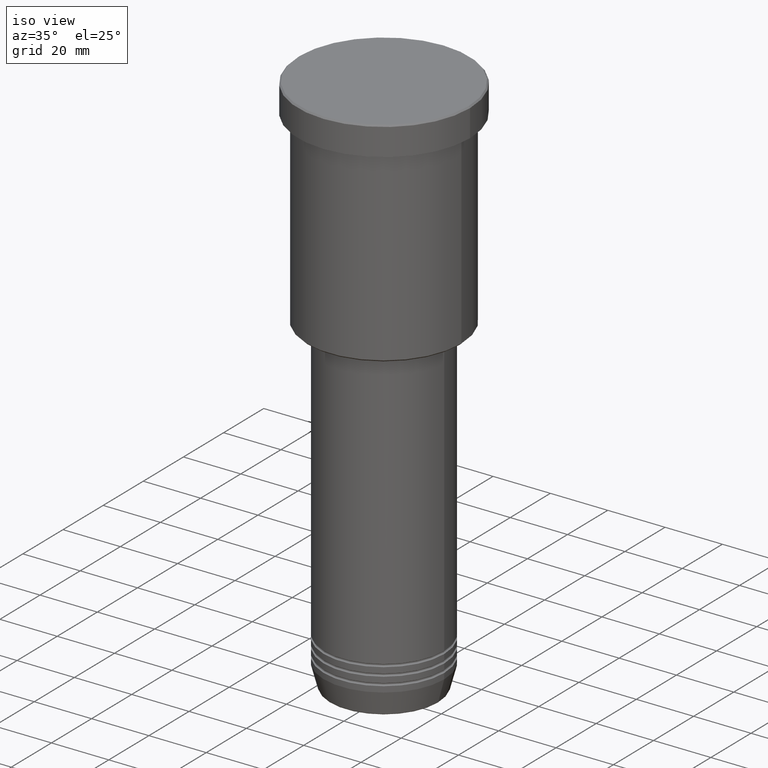
[diagram: clean part render]
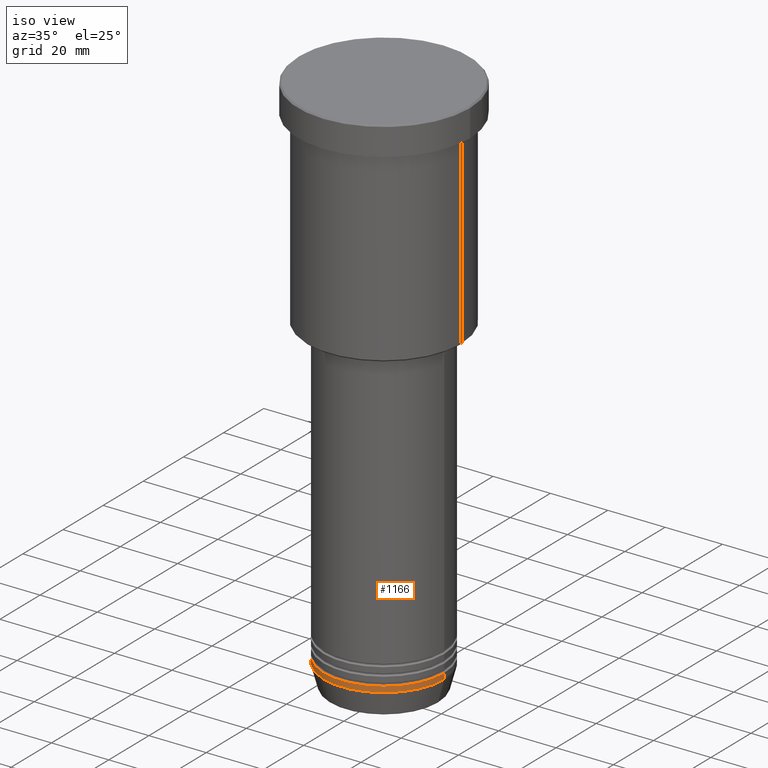
[diagram: same view with one face highlighted and labeled with its STEP entity id]
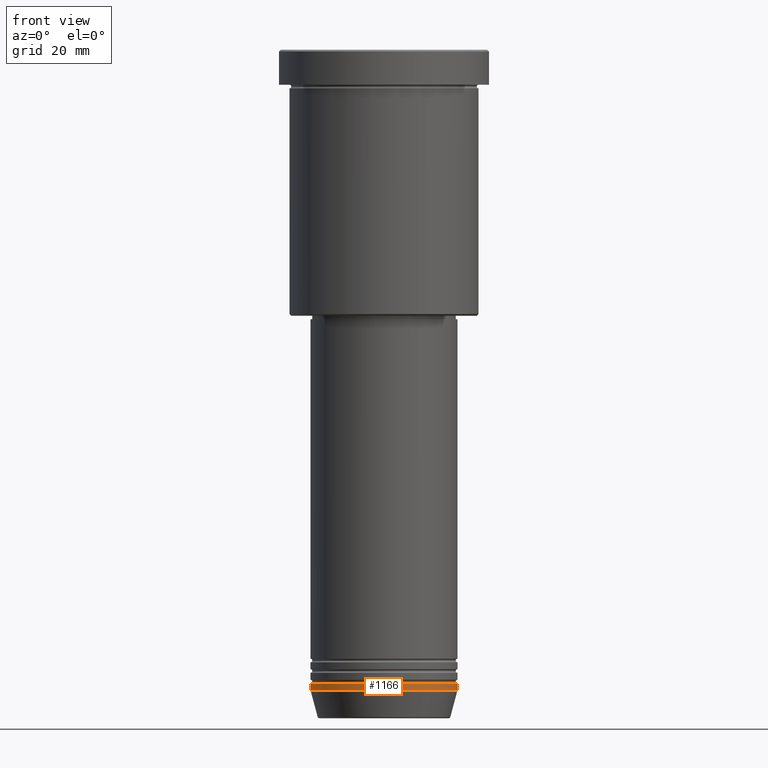
[diagram: same view with one face highlighted and labeled with its STEP entity id]
A machine part, iso view. The second image highlights one B-rep face of the part: STEP entity #1166.
A second angle (front view) of the same face is appended — the face is thin or edge-on in the first view.
In plain terms, the highlighted cylindrical surface (partial cylindrical patch) has radius 21 mm, axis along (-0, -0, 1).
Its self-contained STEP definition (entity closure, byte-faithful):
#30 = ORIENTED_EDGE ( 'NONE', *, *, #239, .T. ) ;
#36 = CARTESIAN_POINT ( 'NONE',  ( 0.000000000000000000, 0.000000000000000000, -183.0000000000000284 ) ) ;
#68 = CARTESIAN_POINT ( 'NONE',  ( -21.00000000000000000, 2.571758278209441661E-15, -183.0000000000000284 ) ) ;
#88 = DIRECTION ( 'NONE',  ( -0.000000000000000000, -0.000000000000000000, 1.000000000000000000 ) ) ;
#105 = VECTOR ( 'NONE', #1002, 1000.000000000000000 ) ;
#107 = LINE ( 'NONE', #642, #105 ) ;
#114 = VERTEX_POINT ( 'NONE', #1012 ) ;
#154 = CARTESIAN_POINT ( 'NONE',  ( 21.00000000000000000, 0.000000000000000000, -183.0000000000000284 ) ) ;
#173 = DIRECTION ( 'NONE',  ( 1.000000000000000000, 0.000000000000000000, 0.000000000000000000 ) ) ;
#178 = EDGE_CURVE ( 'NONE', #602, #796, #107, .T. ) ;
#187 = LINE ( 'NONE', #446, #841 ) ;
#196 = CARTESIAN_POINT ( 'NONE',  ( 0.000000000000000000, 0.000000000000000000, 0.000000000000000000 ) ) ;
#239 = EDGE_CURVE ( 'NONE', #537, #602, #317, .T. ) ;
#244 = CIRCLE ( 'NONE', #919, 21.00000000000000000 ) ;
#258 = DIRECTION ( 'NONE',  ( -0.000000000000000000, -0.000000000000000000, 1.000000000000000000 ) ) ;
#317 = CIRCLE ( 'NONE', #361, 21.00000000000000000 ) ;
#361 = AXIS2_PLACEMENT_3D ( 'NONE', #36, #581, #402 ) ;
#367 = FACE_OUTER_BOUND ( 'NONE', #923, .T. ) ;
#402 = DIRECTION ( 'NONE',  ( 1.000000000000000000, 0.000000000000000000, 0.000000000000000000 ) ) ;
#446 = CARTESIAN_POINT ( 'NONE',  ( -21.00000000000000000, 2.571758278209441661E-15, 0.000000000000000000 ) ) ;
#454 = ORIENTED_EDGE ( 'NONE', *, *, #615, .F. ) ;
#537 = VERTEX_POINT ( 'NONE', #68 ) ;
#581 = DIRECTION ( 'NONE',  ( -0.000000000000000000, -0.000000000000000000, 1.000000000000000000 ) ) ;
#602 = VERTEX_POINT ( 'NONE', #154 ) ;
#611 = AXIS2_PLACEMENT_3D ( 'NONE', #196, #88, #827 ) ;
#615 = EDGE_CURVE ( 'NONE', #114, #796, #244, .T. ) ;
#642 = CARTESIAN_POINT ( 'NONE',  ( 21.00000000000000000, 0.000000000000000000, 0.000000000000000000 ) ) ;
#706 = ORIENTED_EDGE ( 'NONE', *, *, #178, .T. ) ;
#796 = VERTEX_POINT ( 'NONE', #962 ) ;
#809 = DIRECTION ( 'NONE',  ( -0.000000000000000000, -0.000000000000000000, 1.000000000000000000 ) ) ;
#827 = DIRECTION ( 'NONE',  ( 1.000000000000000000, 0.000000000000000000, 0.000000000000000000 ) ) ;
#841 = VECTOR ( 'NONE', #809, 1000.000000000000000 ) ;
#919 = AXIS2_PLACEMENT_3D ( 'NONE', #1073, #258, #173 ) ;
#923 = EDGE_LOOP ( 'NONE', ( #1065, #30, #706, #454 ) ) ;
#962 = CARTESIAN_POINT ( 'NONE',  ( 21.00000000000000000, 0.000000000000000000, -181.0000000000000284 ) ) ;
#998 = CYLINDRICAL_SURFACE ( 'NONE', #611, 21.00000000000000000 ) ;
#1002 = DIRECTION ( 'NONE',  ( -0.000000000000000000, -0.000000000000000000, 1.000000000000000000 ) ) ;
#1012 = CARTESIAN_POINT ( 'NONE',  ( -21.00000000000000000, 2.571758278209441661E-15, -181.0000000000000284 ) ) ;
#1065 = ORIENTED_EDGE ( 'NONE', *, *, #1140, .F. ) ;
#1073 = CARTESIAN_POINT ( 'NONE',  ( 0.000000000000000000, 0.000000000000000000, -181.0000000000000284 ) ) ;
#1140 = EDGE_CURVE ( 'NONE', #537, #114, #187, .T. ) ;
#1166 = ADVANCED_FACE ( 'NONE', ( #367 ), #998, .T. ) ;